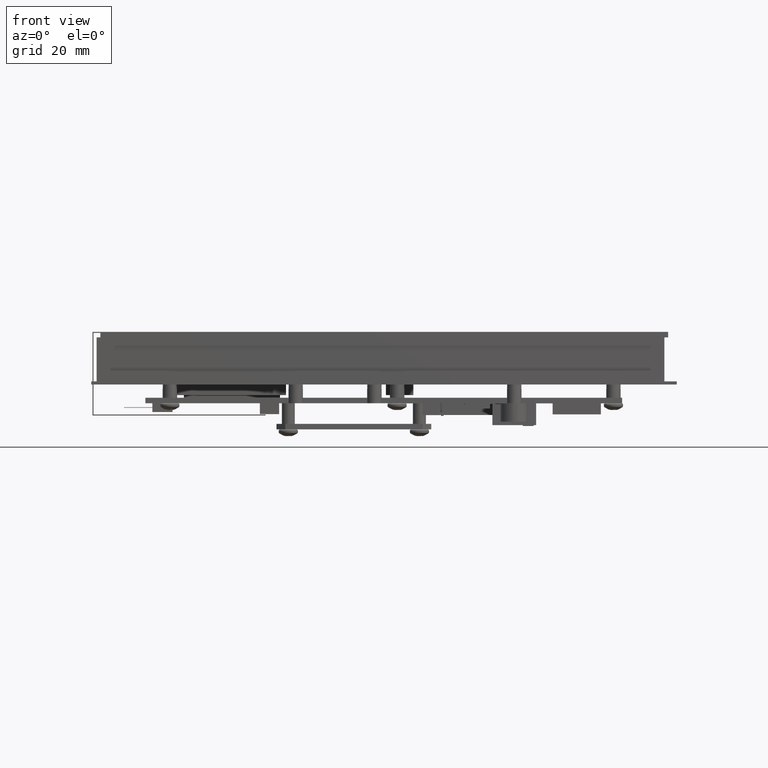
[diagram: clean part render]
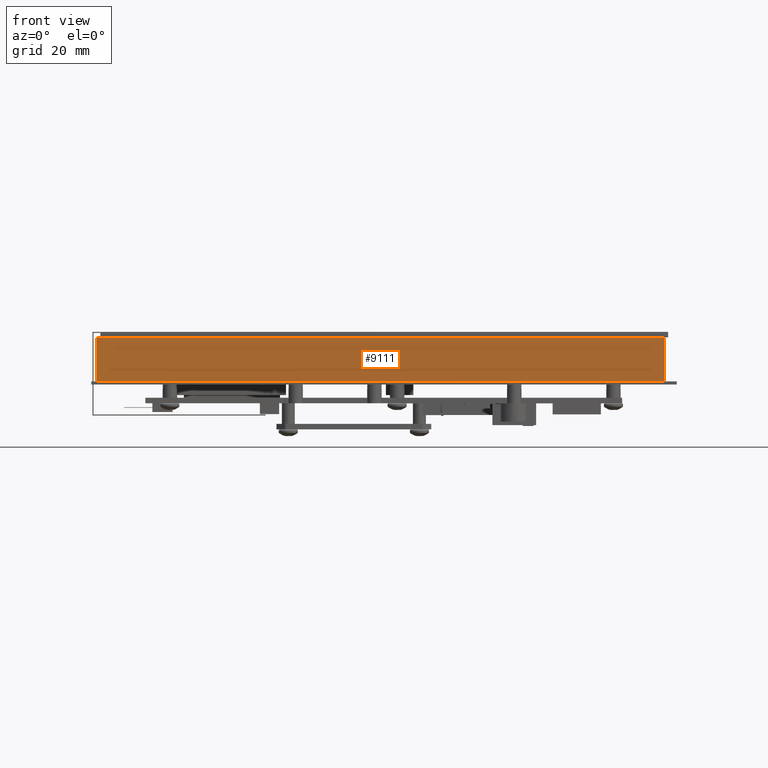
[diagram: same view with one face highlighted and labeled with its STEP entity id]
A machine part, front view. The second image highlights one B-rep face of the part: STEP entity #9111.
In plain terms, the highlighted planar face has unit normal (-0, 1, 0).
Its self-contained STEP definition (entity closure, byte-faithful):
#772 = CARTESIAN_POINT ( 'NONE',  ( -3.248031496062992600, -2.047244094488188900, 0.5039370078740157400 ) ) ;
#792 = FACE_OUTER_BOUND ( 'NONE', #22972, .T. ) ;
#793 = PLANE ( 'NONE',  #11758 ) ;
#795 = DIRECTION ( 'NONE',  ( -4.205390244792259600E-017, 1.000000000000000000, 0.0000000000000000000 ) ) ;
#796 = DIRECTION ( 'NONE',  ( -1.000000000000000000, -4.205390244792259600E-017, 0.0000000000000000000 ) ) ;
#9111 = ADVANCED_FACE ( 'NONE', ( #792 ), #793, .F. ) ;
#9429 = EDGE_CURVE ( 'NONE', #22667, #22668, #10155, .T. ) ;
#9434 = EDGE_CURVE ( 'NONE', #22669, #22667, #10170, .T. ) ;
#9437 = EDGE_CURVE ( 'NONE', #22670, #22668, #10186, .T. ) ;
#9438 = EDGE_CURVE ( 'NONE', #22669, #22670, #10189, .T. ) ;
#9880 = VECTOR ( 'NONE', #10165, 39.37007874015748100 ) ;
#9885 = VECTOR ( 'NONE', #10179, 39.37007874015748100 ) ;
#9889 = VECTOR ( 'NONE', #10188, 39.37007874015748100 ) ;
#9890 = VECTOR ( 'NONE', #10191, 39.37007874015748100 ) ;
#10155 = LINE ( 'NONE', #10163, #9880 ) ;
#10163 = CARTESIAN_POINT ( 'NONE',  ( -3.248031496062992600, -2.047244094488188900, 0.0000000000000000000 ) ) ;
#10165 = DIRECTION ( 'NONE',  ( 1.000000000000000000, 4.205390244792259600E-017, 0.0000000000000000000 ) ) ;
#10170 = LINE ( 'NONE', #10178, #9885 ) ;
#10178 = CARTESIAN_POINT ( 'NONE',  ( -3.248031496062992600, -2.047244094488188900, 0.5039370078740157400 ) ) ;
#10179 = DIRECTION ( 'NONE',  ( -0.0000000000000000000, -0.0000000000000000000, -1.000000000000000000 ) ) ;
#10186 = LINE ( 'NONE', #10187, #9889 ) ;
#10187 = CARTESIAN_POINT ( 'NONE',  ( 3.248031496062992600, -2.047244094488188400, 0.5039370078740157400 ) ) ;
#10188 = DIRECTION ( 'NONE',  ( -0.0000000000000000000, -0.0000000000000000000, -1.000000000000000000 ) ) ;
#10189 = LINE ( 'NONE', #10190, #9890 ) ;
#10190 = CARTESIAN_POINT ( 'NONE',  ( -3.248031496062992600, -2.047244094488188900, 0.5039370078740157400 ) ) ;
#10191 = DIRECTION ( 'NONE',  ( 1.000000000000000000, 4.205390244792259600E-017, 0.0000000000000000000 ) ) ;
#11758 = AXIS2_PLACEMENT_3D ( 'NONE', #772, #795, #796 ) ;
#15229 = ORIENTED_EDGE ( 'NONE', *, *, #9429, .T. ) ;
#15230 = ORIENTED_EDGE ( 'NONE', *, *, #9437, .F. ) ;
#15231 = ORIENTED_EDGE ( 'NONE', *, *, #9438, .F. ) ;
#15232 = ORIENTED_EDGE ( 'NONE', *, *, #9434, .T. ) ;
#19849 = CARTESIAN_POINT ( 'NONE',  ( -3.248031496062992600, -2.047244094488188900, 0.0000000000000000000 ) ) ;
#19850 = CARTESIAN_POINT ( 'NONE',  ( 3.248031496062992600, -2.047244094488188400, 0.0000000000000000000 ) ) ;
#19851 = CARTESIAN_POINT ( 'NONE',  ( -3.248031496062992600, -2.047244094488188900, 0.5039370078740157400 ) ) ;
#19852 = CARTESIAN_POINT ( 'NONE',  ( 3.248031496062992600, -2.047244094488188400, 0.5039370078740157400 ) ) ;
#22667 = VERTEX_POINT ( 'NONE', #19849 ) ;
#22668 = VERTEX_POINT ( 'NONE', #19850 ) ;
#22669 = VERTEX_POINT ( 'NONE', #19851 ) ;
#22670 = VERTEX_POINT ( 'NONE', #19852 ) ;
#22972 = EDGE_LOOP ( 'NONE', ( #15229, #15230, #15231, #15232 ) ) ;